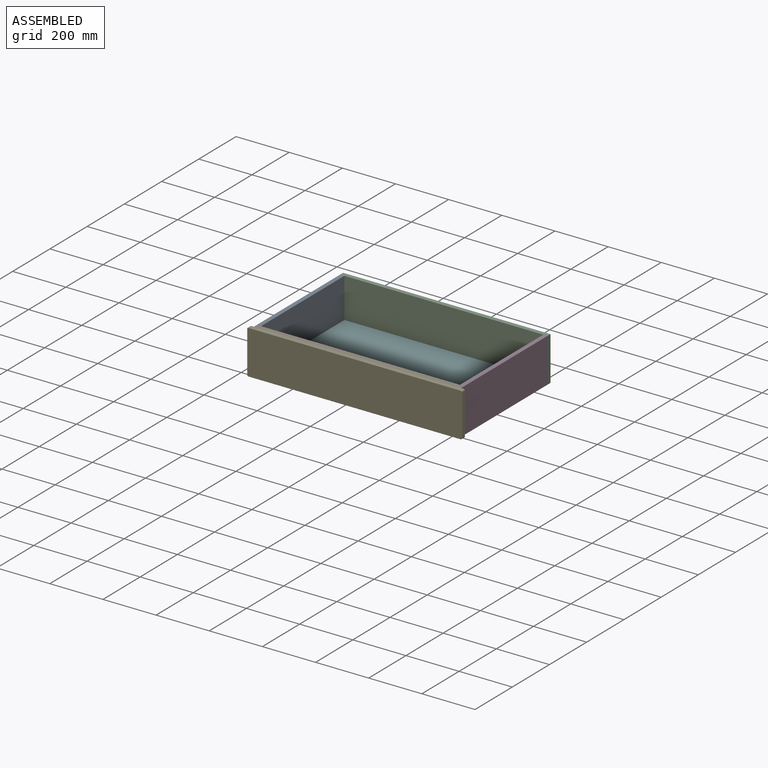
[diagram: assembled view]
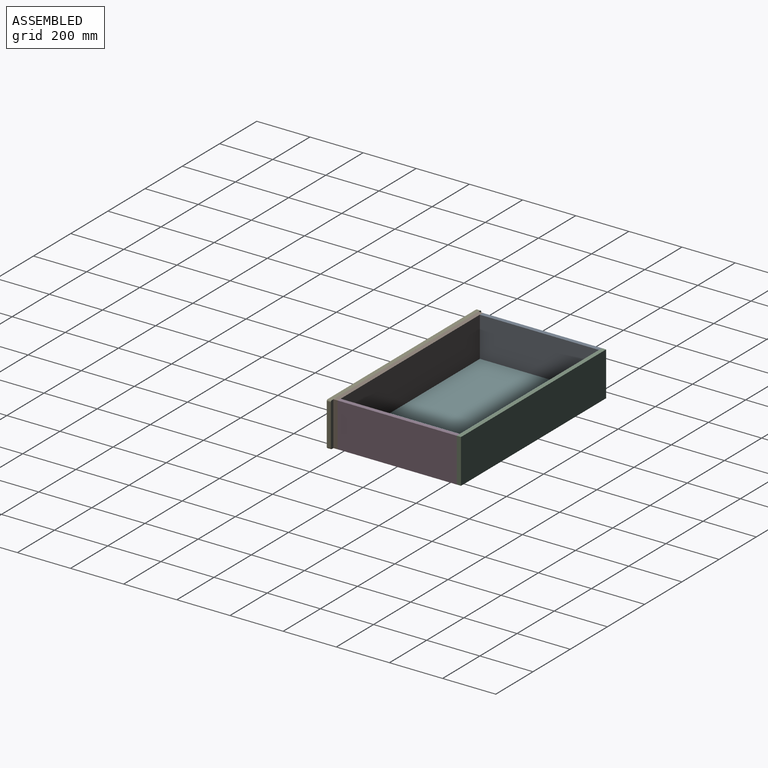
[diagram: assembled view, second angle]
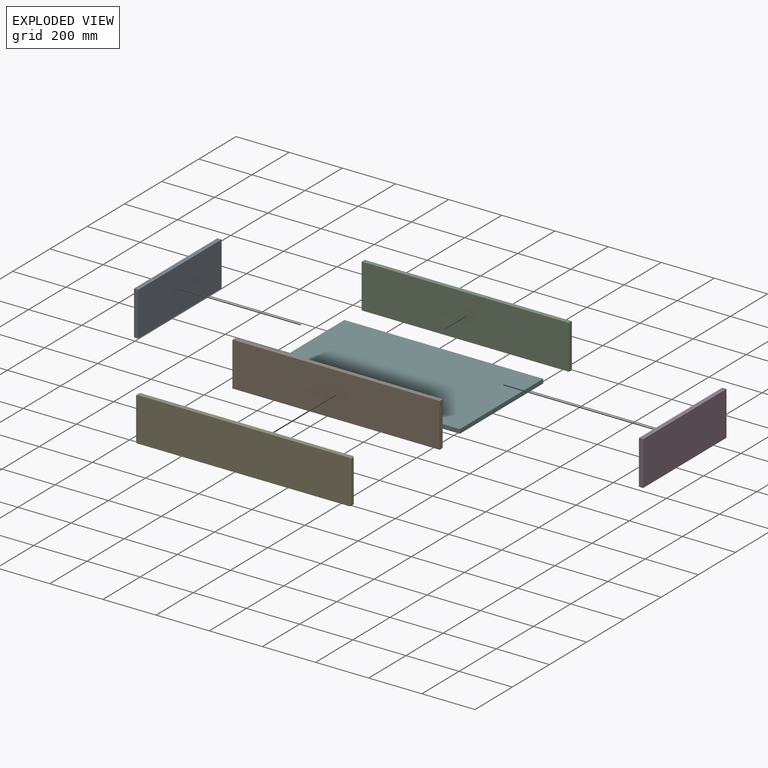
[diagram: exploded view]
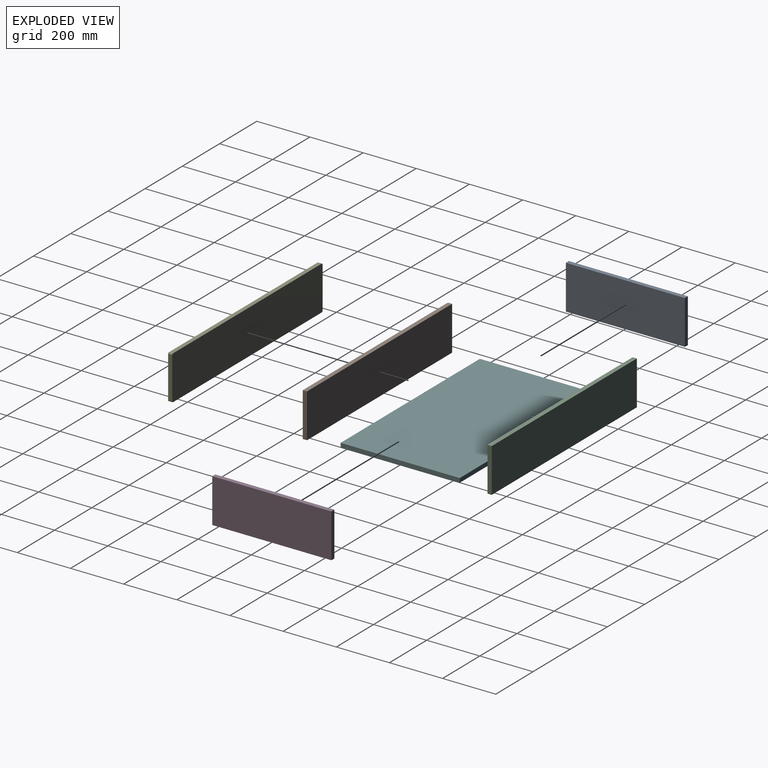
[diagram: exploded view, second angle]
ASSEMBLY  parts=6 mates=13
PART A: 6 faces, bbox 16x448x166 mm
  f0: plane 448x16mm, normal (0,0,1), area 7168mm2, adj f1,f3,f4,f5
  f1: plane 166x16mm, normal (0,-1,0), area 2656mm2, adj f0,f2,f4,f5
  f2: plane 448x16mm, normal (0,0,-1), area 7168mm2, adj f1,f3,f4,f5
  f3: plane 166x16mm, normal (0,1,0), area 2656mm2, adj f0,f2,f4,f5
  f4: plane 448x166mm, normal (1,0,0), area 74368mm2, adj f0,f1,f2,f3
  f5: plane 448x166mm, normal (-1,0,0), area 74368mm2, adj f0,f1,f2,f3
PART B: 6 faces, bbox 780x16x166 mm
  f0: plane 780x16mm, normal (0,0,1), area 12480mm2, adj f1,f3,f4,f5
  f1: plane 166x16mm, normal (-1,0,0), area 2656mm2, adj f0,f2,f4,f5
  f2: plane 780x16mm, normal (0,0,-1), area 12480mm2, adj f1,f3,f4,f5
  f3: plane 166x16mm, normal (1,0,0), area 2656mm2, adj f0,f2,f4,f5
  f4: plane 780x166mm, normal (0,-1,0), area 129480mm2, adj f0,f1,f2,f3
  f5: plane 780x166mm, normal (0,1,0), area 129480mm2, adj f0,f1,f2,f3
PART C: same geometry as B
PART D: same geometry as A
PART E: 18 faces, bbox 808.8x16x166.8 mm
  f0: plane 798x15mm, normal (0,0,1), area 11970mm2, adj f5,f6,f9,f10
  f1: plane 156x15mm, normal (-1,0,0), area 2340mm2, adj f5,f6,f7,f13
  f2: plane 798x15mm, normal (0,0,-1), area 11970mm2, adj f5,f7,f8,f17
  f3: plane 156x15mm, normal (1,0,0), area 2340mm2, adj f5,f8,f9,f14
  f4: plane 806x164mm, normal (0,-1,0), area 132170.3mm2, adj f10,f11,f12,f13,f14,f15,f16,f17
  f5: plane 808x166mm, normal (0,1,0), area 134106.5mm2, adj f0,f1,f2,f3,f6,f7,f8,f9
  f6: cylinder r=5mm len=15mm, axis (0,-1,0), area 117.8mm2, adj f0,f1,f5,f11
  f7: cylinder r=5mm len=15mm, axis (0,1,0), area 117.8mm2, adj f1,f2,f5,f15
  f8: cylinder r=5mm len=15mm, axis (0,-1,0), area 117.8mm2, adj f2,f3,f5,f16
  f9: cylinder r=5mm len=15mm, axis (0,1,0), area 117.8mm2, adj f0,f3,f5,f12
  f10: cylinder r=1mm len=798mm, axis (1,0,0), area 1253.5mm2, adj f0,f4,f11,f12
  f11: torus R=4mm, axis (0,-1,0), area 11.4mm2, adj f4,f6,f10,f13
  f12: torus R=4mm, axis (0,-1,0), area 11.4mm2, adj f4,f9,f10,f14
  f13: cylinder r=1mm len=156mm, axis (0,0,1), area 245mm2, adj f1,f4,f11,f15
  f14: cylinder r=1mm len=156mm, axis (0,0,-1), area 245mm2, adj f3,f4,f12,f16
  f15: torus R=4mm, axis (0,-1,0), area 11.4mm2, adj f4,f7,f13,f17
  f16: torus R=4mm, axis (0,-1,0), area 11.4mm2, adj f4,f8,f14,f17
  f17: cylinder r=1mm len=798mm, axis (-1,0,0), area 1253.5mm2, adj f2,f4,f15,f16
PART F: 6 faces, bbox 748x448x16 mm
  f0: plane 748x16mm, normal (0,1,0), area 11968mm2, adj f1,f3,f4,f5
  f1: plane 448x16mm, normal (-1,0,0), area 7168mm2, adj f0,f2,f4,f5
  f2: plane 748x16mm, normal (0,-1,0), area 11968mm2, adj f1,f3,f4,f5
  f3: plane 448x16mm, normal (1,0,0), area 7168mm2, adj f0,f2,f4,f5
  f4: plane 748x448mm, normal (0,0,1), area 335104mm2, adj f0,f1,f2,f3
  f5: plane 748x448mm, normal (0,0,-1), area 335104mm2, adj f0,f1,f2,f3
PLACE A t=(-337.65,194.51,-16.95)mm
PLACE B t=(-28.84,-205.28,-18.44)mm
PLACE C t=(-28.84,258.72,-18.44)mm
PLACE D t=(426.35,194.51,-16.95)mm
PLACE E t=(-138.37,-221.28,-43.57)mm
PLACE F t=(-5.92,21.11,-100.25)mm fixed
MATE planar D.f1 <-> B.f5  axis (0,-1,0) through (434.35,-205.28,-17.25)mm
MATE planar D.f2 <-> F.f5  axis (0,0,-1) through (434.35,18.72,-100.25)mm
MATE planar B.f5 <-> F.f2  axis (0,1,0) through (52.35,-205.28,-17.25)mm
MATE planar C.f4 <-> F.f0  axis (0,-1,0) through (52.35,242.72,-17.25)mm
MATE planar A.f4 <-> F.f1  axis (1,0,0) through (-321.65,18.72,-17.25)mm
MATE fastened B.f4 <-> E.f5  axis (0,-1,0) through (52.35,-221.28,-17.25)mm
MATE planar A.f2 <-> F.f5  axis (0,0,-1) through (-329.65,18.72,-100.25)mm
MATE planar C.f2 <-> F.f5  axis (0,0,-1) through (52.35,250.72,-100.25)mm
MATE planar D.f5 <-> F.f3  axis (-1,0,0) through (426.35,18.72,-17.25)mm
MATE planar A.f1 <-> B.f5  axis (0,-1,0) through (-329.65,-205.28,-17.25)mm
MATE planar B.f3 <-> D.f4  axis (1,0,0) through (442.35,-213.28,-17.25)mm
MATE planar B.f2 <-> F.f5  axis (0,0,-1) through (52.35,-213.28,-100.25)mm
MATE planar D.f4 <-> C.f3  axis (1,0,0) through (442.35,18.72,-17.25)mm
